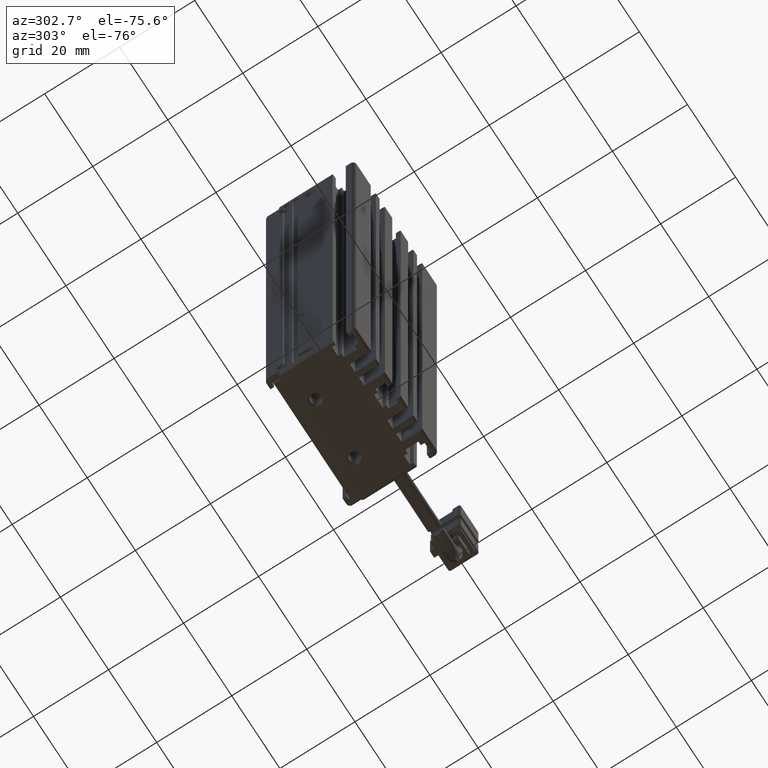
[diagram: clean part render]
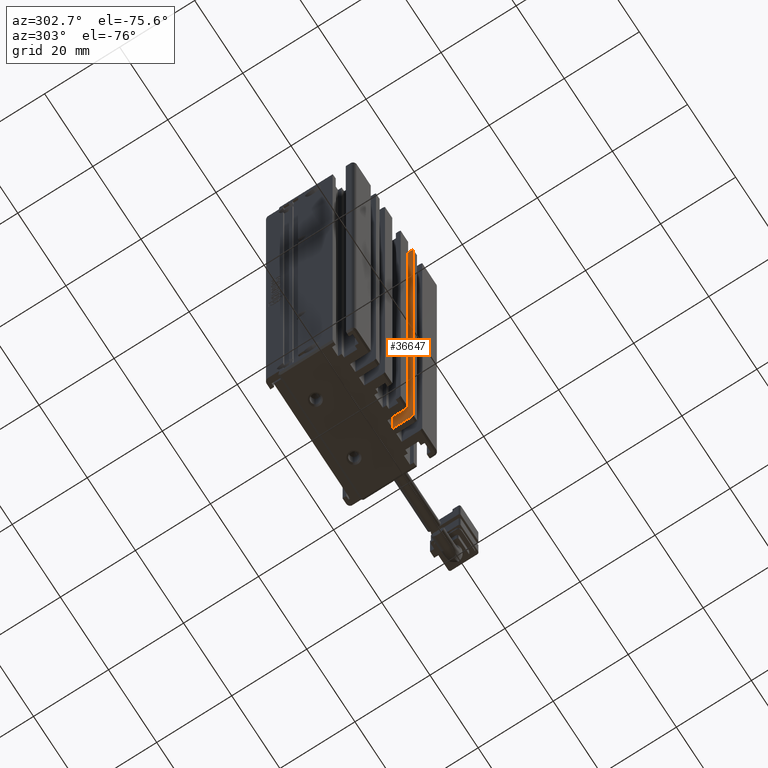
[diagram: same view with one face highlighted and labeled with its STEP entity id]
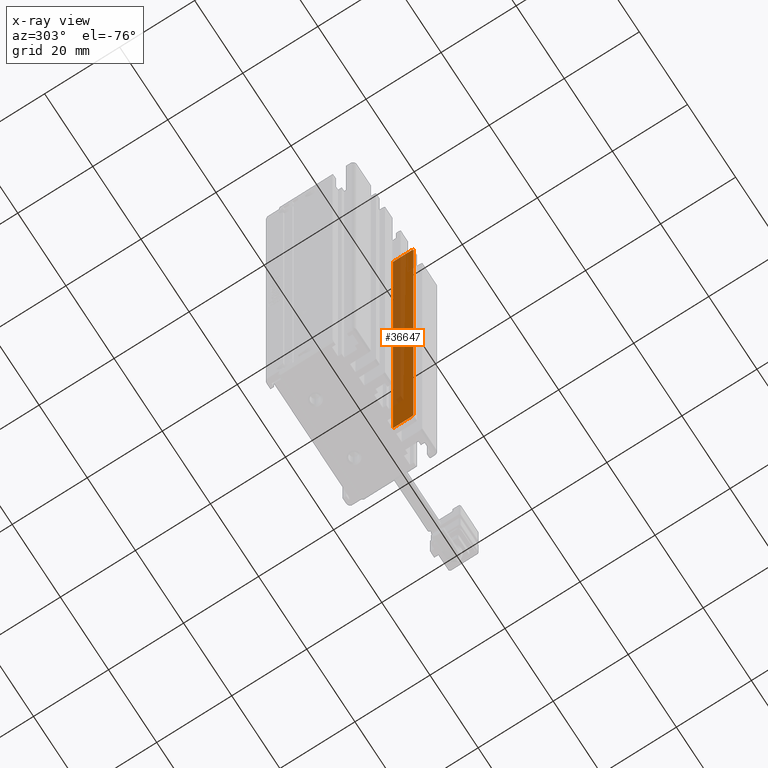
[diagram: x-ray of the same camera — body ghosted, the highlighted face saturated]
A machine part, auxiliary view. The second image highlights one B-rep face of the part: STEP entity #36647.
The next image is the same camera in x-ray: the body ghosted, the highlighted face saturated — about 49% of this face is hidden behind the body in this view.
In plain terms, the highlighted planar face has unit normal (-1, 0, 0).
Its self-contained STEP definition (entity closure, byte-faithful):
#1772 = DIRECTION ( 'NONE',  ( 0.0000000000000000000, 0.0000000000000000000, 1.000000000000000000 ) ) ;
#3094 = VECTOR ( 'NONE', #48236, 1000.000000000000000 ) ;
#4833 = DIRECTION ( 'NONE',  ( 0.0000000000000000000, -0.7071067811865474600, 0.7071067811865474600 ) ) ;
#5583 = DIRECTION ( 'NONE',  ( -0.0000000000000000000, -0.0000000000000000000, -1.000000000000000000 ) ) ;
#5894 = FACE_OUTER_BOUND ( 'NONE', #52699, .T. ) ;
#6937 = CARTESIAN_POINT ( 'NONE',  ( 47.92537974683541800, 11.49073232304836800, -40.00000000000000700 ) ) ;
#8166 = VERTEX_POINT ( 'NONE', #10582 ) ;
#9201 = CARTESIAN_POINT ( 'NONE',  ( 47.92537974683541800, 7.083797468354437600, -40.00000000000000700 ) ) ;
#9897 = EDGE_CURVE ( 'NONE', #70322, #47698, #61783, .T. ) ;
#10331 = CARTESIAN_POINT ( 'NONE',  ( 47.92537974683541800, 16.49073232304836600, -190.0000000000000000 ) ) ;
#10582 = CARTESIAN_POINT ( 'NONE',  ( 47.92537974683541800, 10.99073232304837000, -40.50000000000000700 ) ) ;
#11870 = EDGE_CURVE ( 'NONE', #41156, #50371, #43851, .T. ) ;
#15463 = CARTESIAN_POINT ( 'NONE',  ( 47.92537974683541800, 16.49073232304837000, -40.00000000000000700 ) ) ;
#16590 = ORIENTED_EDGE ( 'NONE', *, *, #9897, .F. ) ;
#16857 = AXIS2_PLACEMENT_3D ( 'NONE', #58197, #47344, #20142 ) ;
#17984 = CARTESIAN_POINT ( 'NONE',  ( 47.92537974683541800, 11.49073232304837000, -190.0000000000000000 ) ) ;
#20142 = DIRECTION ( 'NONE',  ( 0.0000000000000000000, 0.0000000000000000000, 1.000000000000000000 ) ) ;
#20952 = ORIENTED_EDGE ( 'NONE', *, *, #37471, .T. ) ;
#21823 = ORIENTED_EDGE ( 'NONE', *, *, #48968, .T. ) ;
#22312 = VERTEX_POINT ( 'NONE', #10331 ) ;
#26287 = CARTESIAN_POINT ( 'NONE',  ( 47.92537974683541800, 10.99073232304837000, -189.4999999999999700 ) ) ;
#29800 = CARTESIAN_POINT ( 'NONE',  ( 47.92537974683541800, 10.99073232304837000, -40.00000000000000700 ) ) ;
#35469 = ORIENTED_EDGE ( 'NONE', *, *, #11870, .T. ) ;
#36132 = VECTOR ( 'NONE', #63929, 1000.000000000000000 ) ;
#36647 = ADVANCED_FACE ( 'NONE', ( #5894 ), #52633, .T. ) ;
#37445 = LINE ( 'NONE', #66044, #48472 ) ;
#37471 = EDGE_CURVE ( 'NONE', #50371, #8166, #68175, .T. ) ;
#41156 = VERTEX_POINT ( 'NONE', #17984 ) ;
#41635 = CARTESIAN_POINT ( 'NONE',  ( 47.92537974683541800, 10.99073232304837000, -40.50000000000000700 ) ) ;
#43851 = LINE ( 'NONE', #54038, #49031 ) ;
#45459 = VECTOR ( 'NONE', #57664, 1000.000000000000100 ) ;
#47344 = DIRECTION ( 'NONE',  ( -1.000000000000000000, 0.0000000000000000000, 0.0000000000000000000 ) ) ;
#47698 = VERTEX_POINT ( 'NONE', #6937 ) ;
#48236 = DIRECTION ( 'NONE',  ( -0.0000000000000000000, -1.000000000000000000, 0.0000000000000000000 ) ) ;
#48472 = VECTOR ( 'NONE', #5583, 1000.000000000000000 ) ;
#48685 = EDGE_CURVE ( 'NONE', #70322, #22312, #37445, .T. ) ;
#48968 = EDGE_CURVE ( 'NONE', #22312, #41156, #57039, .T. ) ;
#49031 = VECTOR ( 'NONE', #4833, 1000.000000000000100 ) ;
#50371 = VERTEX_POINT ( 'NONE', #26287 ) ;
#51368 = EDGE_CURVE ( 'NONE', #8166, #47698, #60062, .T. ) ;
#52633 = PLANE ( 'NONE',  #16857 ) ;
#52699 = EDGE_LOOP ( 'NONE', ( #16590, #60575, #21823, #35469, #20952, #53511 ) ) ;
#53511 = ORIENTED_EDGE ( 'NONE', *, *, #51368, .T. ) ;
#53526 = CARTESIAN_POINT ( 'NONE',  ( 47.92537974683541800, 7.083797468354437600, -190.0000000000000000 ) ) ;
#53606 = VECTOR ( 'NONE', #1772, 1000.000000000000000 ) ;
#54038 = CARTESIAN_POINT ( 'NONE',  ( 47.92537974683541800, 10.99073232304837000, -189.5000000000000000 ) ) ;
#57039 = LINE ( 'NONE', #53526, #3094 ) ;
#57664 = DIRECTION ( 'NONE',  ( 0.0000000000000000000, 0.7071067811865451300, 0.7071067811865500200 ) ) ;
#58197 = CARTESIAN_POINT ( 'NONE',  ( 47.92537974683541800, 7.083797468354437600, -40.00000000000000700 ) ) ;
#60062 = LINE ( 'NONE', #41635, #45459 ) ;
#60575 = ORIENTED_EDGE ( 'NONE', *, *, #48685, .T. ) ;
#61783 = LINE ( 'NONE', #9201, #36132 ) ;
#63929 = DIRECTION ( 'NONE',  ( -0.0000000000000000000, -1.000000000000000000, 0.0000000000000000000 ) ) ;
#66044 = CARTESIAN_POINT ( 'NONE',  ( 47.92537974683541800, 16.49073232304836600, -40.00000000000000700 ) ) ;
#68175 = LINE ( 'NONE', #29800, #53606 ) ;
#70322 = VERTEX_POINT ( 'NONE', #15463 ) ;